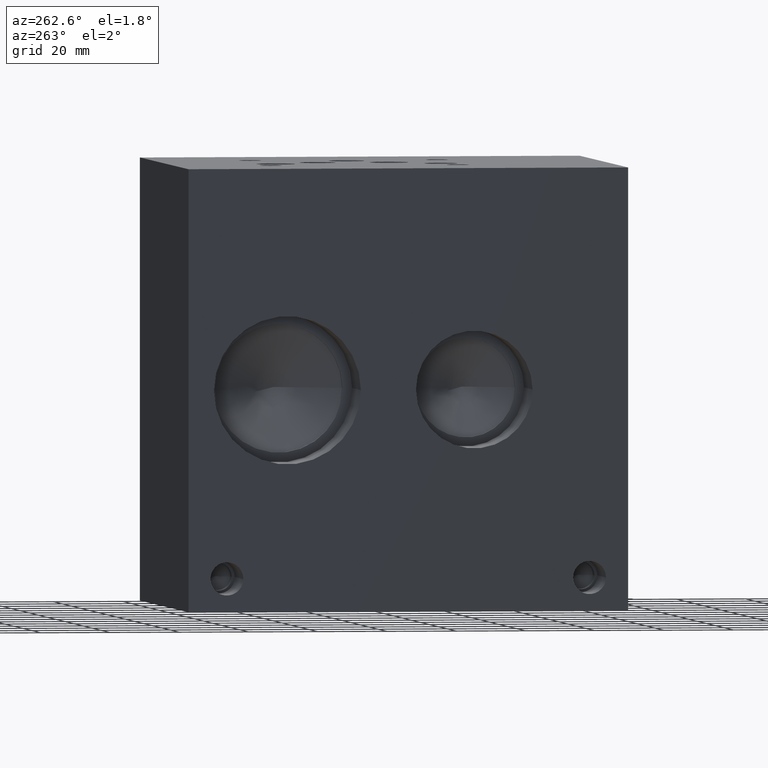
[diagram: clean part render]
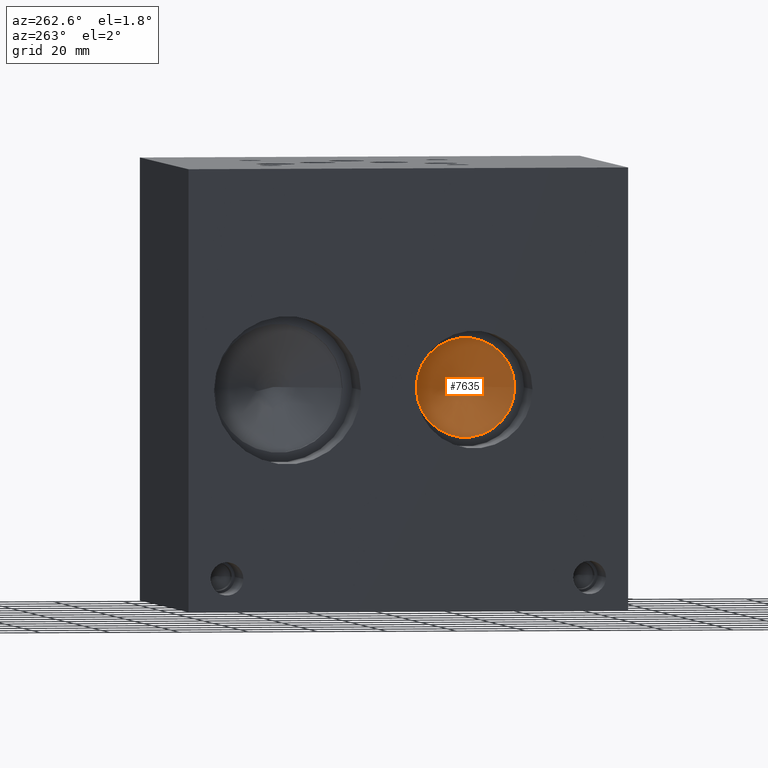
[diagram: same view with one face highlighted and labeled with its STEP entity id]
A machine part, auxiliary view. The second image highlights one B-rep face of the part: STEP entity #7635.
In plain terms, the highlighted conical surface has half-angle 60 deg.
Its self-contained STEP definition (entity closure, byte-faithful):
#62=CONICAL_SURFACE('',#8033,7.14375,1.0471975511966);
#156=CIRCLE('',#8034,14.2875);
#157=CIRCLE('',#8035,14.2875);
#852=FACE_OUTER_BOUND('',#1279,.T.);
#1279=EDGE_LOOP('',(#6737,#6738,#6739,#6740));
#2045=LINE('',#12934,#2788);
#2788=VECTOR('',#9536,7.14375);
#3683=VERTEX_POINT('',#12930);
#3684=VERTEX_POINT('',#12931);
#3685=VERTEX_POINT('',#12933);
#4720=EDGE_CURVE('',#3683,#3684,#156,.T.);
#4721=EDGE_CURVE('',#3684,#3685,#2045,.T.);
#4722=EDGE_CURVE('',#3684,#3683,#157,.T.);
#6737=ORIENTED_EDGE('',*,*,#4720,.T.);
#6738=ORIENTED_EDGE('',*,*,#4721,.T.);
#6739=ORIENTED_EDGE('',*,*,#4721,.F.);
#6740=ORIENTED_EDGE('',*,*,#4722,.T.);
#7635=ADVANCED_FACE('',(#852),#62,.F.);
#8033=AXIS2_PLACEMENT_3D('',#12929,#9532,#9533);
#8034=AXIS2_PLACEMENT_3D('',#12932,#9534,#9535);
#8035=AXIS2_PLACEMENT_3D('',#12935,#9537,#9538);
#9532=DIRECTION('center_axis',(-1.,0.,0.));
#9533=DIRECTION('ref_axis',(0.,1.,0.));
#9534=DIRECTION('center_axis',(-1.,0.,0.));
#9535=DIRECTION('ref_axis',(0.,1.,0.));
#9536=DIRECTION('',(0.5,0.866025403784438,-1.06057523872491E-16));
#9537=DIRECTION('center_axis',(-1.,0.,0.));
#9538=DIRECTION('ref_axis',(0.,1.,0.));
#12929=CARTESIAN_POINT('Origin',(23.9485359855234,44.45,63.5));
#12930=CARTESIAN_POINT('',(19.82409,58.7375,63.5));
#12931=CARTESIAN_POINT('',(19.82409,30.1625,63.5));
#12932=CARTESIAN_POINT('Origin',(19.82409,44.45,63.5));
#12933=CARTESIAN_POINT('',(28.0729819710468,44.45,63.5));
#12934=CARTESIAN_POINT('',(23.9485359855234,37.30625,63.5));
#12935=CARTESIAN_POINT('Origin',(19.82409,44.45,63.5));